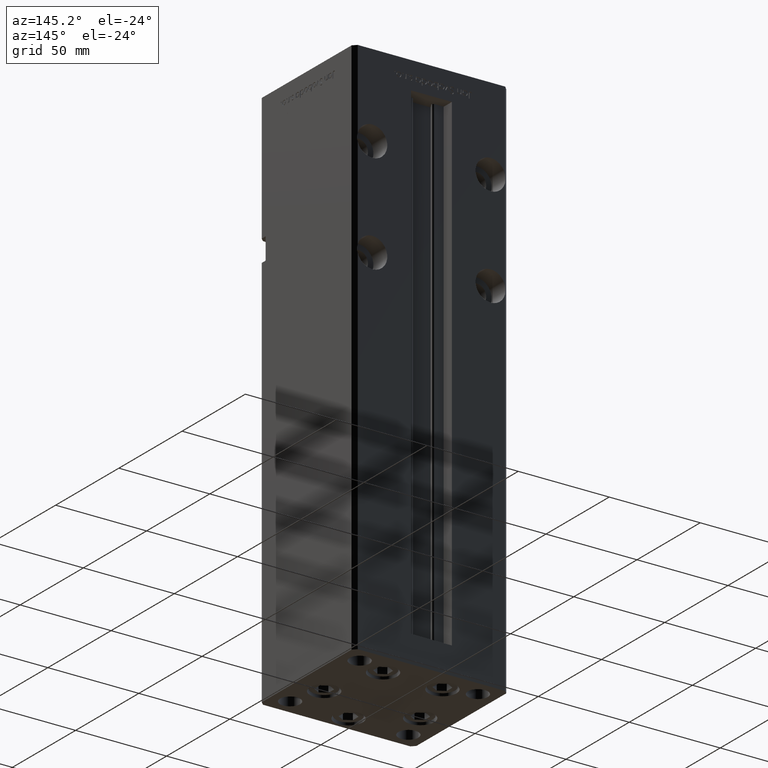
[diagram: clean part render]
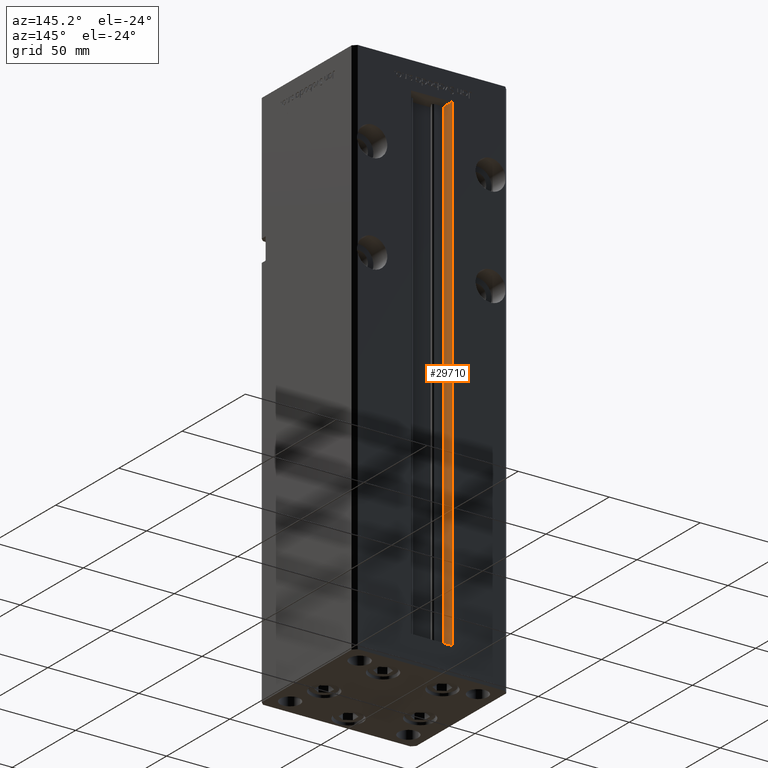
[diagram: same view with one face highlighted and labeled with its STEP entity id]
A machine part, auxiliary view. The second image highlights one B-rep face of the part: STEP entity #29710.
In plain terms, the highlighted planar face has unit normal (-1, 0, 0).
Its self-contained STEP definition (entity closure, byte-faithful):
#2251 = DIRECTION ( 'NONE',  ( 0.000000000000000000, 0.000000000000000000, 1.000000000000000000 ) ) ;
#3220 = EDGE_CURVE ( 'NONE', #42873, #23898, #13462, .T. ) ;
#3610 = LINE ( 'NONE', #49861, #42020 ) ;
#3776 = VECTOR ( 'NONE', #24427, 1000.000000000000000 ) ;
#3829 = ORIENTED_EDGE ( 'NONE', *, *, #39863, .F. ) ;
#4210 = LINE ( 'NONE', #40315, #3776 ) ;
#4317 = VECTOR ( 'NONE', #30439, 1000.000000000000000 ) ;
#4958 = AXIS2_PLACEMENT_3D ( 'NONE', #6284, #31066, #2251 ) ;
#6072 = VERTEX_POINT ( 'NONE', #44360 ) ;
#6284 = CARTESIAN_POINT ( 'NONE',  ( -11.24999999999999822, 31.00000000000000000, 0.000000000000000000 ) ) ;
#8002 = CARTESIAN_POINT ( 'NONE',  ( -11.24999999999999822, 31.00000000000000000, 0.000000000000000000 ) ) ;
#9176 = CARTESIAN_POINT ( 'NONE',  ( -11.24999999999999822, 31.00000000000000000, 268.5000000000000000 ) ) ;
#9311 = VERTEX_POINT ( 'NONE', #9176 ) ;
#12687 = LINE ( 'NONE', #39011, #46112 ) ;
#13462 = LINE ( 'NONE', #26134, #4317 ) ;
#13819 = FACE_OUTER_BOUND ( 'NONE', #22219, .T. ) ;
#18667 = PLANE ( 'NONE',  #4958 ) ;
#19663 = EDGE_CURVE ( 'NONE', #42873, #6072, #4210, .T. ) ;
#22219 = EDGE_LOOP ( 'NONE', ( #23778, #47715, #47103, #3829 ) ) ;
#23778 = ORIENTED_EDGE ( 'NONE', *, *, #25566, .F. ) ;
#23898 = VERTEX_POINT ( 'NONE', #8002 ) ;
#24427 = DIRECTION ( 'NONE',  ( -0.000000000000000000, -0.000000000000000000, 1.000000000000000000 ) ) ;
#25100 = DIRECTION ( 'NONE',  ( -0.000000000000000000, -0.000000000000000000, 1.000000000000000000 ) ) ;
#25566 = EDGE_CURVE ( 'NONE', #23898, #9311, #12687, .T. ) ;
#26134 = CARTESIAN_POINT ( 'NONE',  ( -11.24999999999999822, 31.00000000000000000, 0.000000000000000000 ) ) ;
#29710 = ADVANCED_FACE ( 'NONE', ( #13819 ), #18667, .F. ) ;
#30439 = DIRECTION ( 'NONE',  ( -0.000000000000000000, -1.000000000000000000, -0.000000000000000000 ) ) ;
#31066 = DIRECTION ( 'NONE',  ( -1.000000000000000000, 0.000000000000000000, 0.000000000000000000 ) ) ;
#33473 = DIRECTION ( 'NONE',  ( 0.000000000000000000, 1.000000000000000000, 0.000000000000000000 ) ) ;
#39011 = CARTESIAN_POINT ( 'NONE',  ( -11.24999999999999822, 31.00000000000000000, 0.000000000000000000 ) ) ;
#39863 = EDGE_CURVE ( 'NONE', #9311, #6072, #3610, .T. ) ;
#40315 = CARTESIAN_POINT ( 'NONE',  ( -11.24999999999999822, 37.50000000000000000, 0.000000000000000000 ) ) ;
#42020 = VECTOR ( 'NONE', #33473, 1000.000000000000000 ) ;
#42873 = VERTEX_POINT ( 'NONE', #52232 ) ;
#44360 = CARTESIAN_POINT ( 'NONE',  ( -11.24999999999999822, 37.50000000000000000, 268.5000000000000000 ) ) ;
#46112 = VECTOR ( 'NONE', #25100, 1000.000000000000000 ) ;
#47103 = ORIENTED_EDGE ( 'NONE', *, *, #19663, .T. ) ;
#47715 = ORIENTED_EDGE ( 'NONE', *, *, #3220, .F. ) ;
#49861 = CARTESIAN_POINT ( 'NONE',  ( -11.24999999999999822, 0.000000000000000000, 268.5000000000000000 ) ) ;
#52232 = CARTESIAN_POINT ( 'NONE',  ( -11.24999999999999822, 37.50000000000000000, 0.000000000000000000 ) ) ;